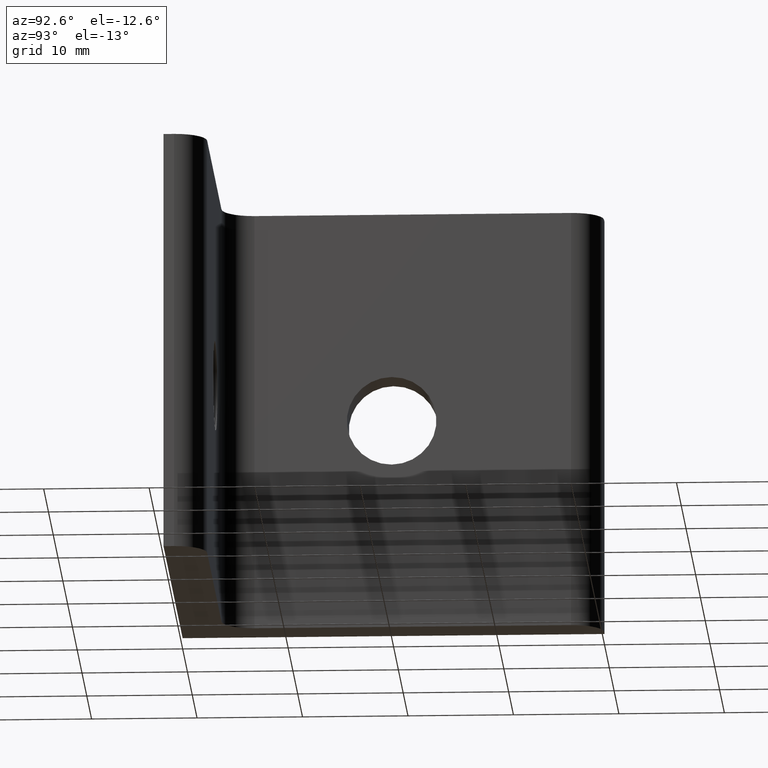
[diagram: clean part render]
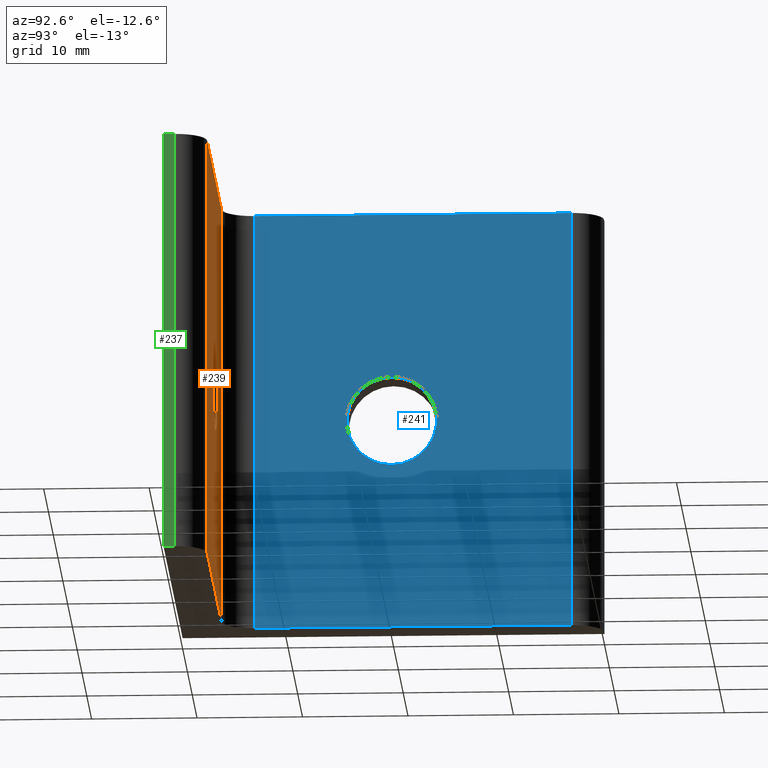
[diagram: same view with three faces highlighted in distinct colors, each labeled with its STEP entity id]
A machine part, auxiliary view with three faces highlighted in distinct colors.
Their STEP definitions:

[orange] entity #239 — the highlighted planar face has unit normal (0, -1, 0).
#25=LINE('',#376,#46);
#26=LINE('',#380,#47);
#27=LINE('',#382,#48);
#28=LINE('',#383,#49);
#46=VECTOR('',#305,40.);
#47=VECTOR('',#310,30.);
#48=VECTOR('',#311,40.);
#49=VECTOR('',#312,30.);
#60=PLANE('',#260);
#69=FACE_BOUND('',#95,.T.);
#77=FACE_OUTER_BOUND('',#94,.T.);
#94=EDGE_LOOP('',(#188,#189,#190,#191));
#95=EDGE_LOOP('',(#192));
#105=CIRCLE('',#252,4.25);
#115=VERTEX_POINT('',#347);
#125=VERTEX_POINT('',#373);
#126=VERTEX_POINT('',#375);
#127=VERTEX_POINT('',#379);
#128=VERTEX_POINT('',#381);
#137=EDGE_CURVE('',#115,#115,#105,.T.);
#150=EDGE_CURVE('',#126,#125,#25,.T.);
#152=EDGE_CURVE('',#125,#127,#26,.T.);
#153=EDGE_CURVE('',#128,#127,#27,.T.);
#154=EDGE_CURVE('',#126,#128,#28,.T.);
#188=ORIENTED_EDGE('',*,*,#152,.T.);
#189=ORIENTED_EDGE('',*,*,#153,.F.);
#190=ORIENTED_EDGE('',*,*,#154,.F.);
#191=ORIENTED_EDGE('',*,*,#150,.T.);
#192=ORIENTED_EDGE('',*,*,#137,.T.);
#239=ADVANCED_FACE('',(#77,#69),#60,.F.);
#252=AXIS2_PLACEMENT_3D('',#348,#281,#282);
#260=AXIS2_PLACEMENT_3D('',#378,#308,#309);
#281=DIRECTION('center_axis',(0.,-1.,0.));
#282=DIRECTION('ref_axis',(0.,0.,-1.));
#305=DIRECTION('',(0.,0.,-1.));
#308=DIRECTION('center_axis',(0.,-1.,0.));
#309=DIRECTION('ref_axis',(0.,0.,-1.));
#310=DIRECTION('',(-1.,0.,0.));
#311=DIRECTION('',(0.,0.,-1.));
#312=DIRECTION('',(-1.,0.,0.));
#347=CARTESIAN_POINT('',(20.,4.,-4.24999999999999));
#348=CARTESIAN_POINT('Origin',(20.,4.,7.105427E-15));
#373=CARTESIAN_POINT('',(37.,4.,-20.));
#375=CARTESIAN_POINT('',(37.,4.,20.));
#376=CARTESIAN_POINT('',(37.,4.,20.));
#378=CARTESIAN_POINT('Origin',(5.50000000000002,4.,22.));
#379=CARTESIAN_POINT('',(7.00000000000002,4.,-20.));
#380=CARTESIAN_POINT('',(37.,4.,-20.));
#381=CARTESIAN_POINT('',(7.00000000000002,4.,20.));
#382=CARTESIAN_POINT('',(7.00000000000002,4.,20.));
#383=CARTESIAN_POINT('',(37.,4.,20.));

[blue] entity #241 — the highlighted planar face has unit normal (-1, 0, 0).
#29=LINE('',#388,#50);
#30=LINE('',#392,#51);
#31=LINE('',#394,#52);
#32=LINE('',#395,#53);
#50=VECTOR('',#317,40.);
#51=VECTOR('',#322,30.);
#52=VECTOR('',#323,40.);
#53=VECTOR('',#324,30.);
#61=PLANE('',#264);
#70=FACE_BOUND('',#98,.T.);
#79=FACE_OUTER_BOUND('',#97,.T.);
#97=EDGE_LOOP('',(#197,#198,#199,#200));
#98=EDGE_LOOP('',(#201));
#103=CIRCLE('',#249,4.25);
#113=VERTEX_POINT('',#342);
#129=VERTEX_POINT('',#385);
#130=VERTEX_POINT('',#387);
#131=VERTEX_POINT('',#391);
#132=VERTEX_POINT('',#393);
#135=EDGE_CURVE('',#113,#113,#103,.T.);
#156=EDGE_CURVE('',#130,#129,#29,.T.);
#158=EDGE_CURVE('',#129,#131,#30,.T.);
#159=EDGE_CURVE('',#132,#131,#31,.T.);
#160=EDGE_CURVE('',#130,#132,#32,.T.);
#197=ORIENTED_EDGE('',*,*,#158,.T.);
#198=ORIENTED_EDGE('',*,*,#159,.F.);
#199=ORIENTED_EDGE('',*,*,#160,.F.);
#200=ORIENTED_EDGE('',*,*,#156,.T.);
#201=ORIENTED_EDGE('',*,*,#135,.T.);
#241=ADVANCED_FACE('',(#79,#70),#61,.F.);
#249=AXIS2_PLACEMENT_3D('',#343,#275,#276);
#264=AXIS2_PLACEMENT_3D('',#390,#320,#321);
#275=DIRECTION('center_axis',(-1.,0.,0.));
#276=DIRECTION('ref_axis',(0.,0.,1.));
#317=DIRECTION('',(0.,0.,-1.));
#320=DIRECTION('center_axis',(-1.,0.,0.));
#321=DIRECTION('ref_axis',(0.,0.,1.));
#322=DIRECTION('',(0.,1.,0.));
#323=DIRECTION('',(0.,0.,-1.));
#324=DIRECTION('',(0.,1.,0.));
#342=CARTESIAN_POINT('',(4.00000000000002,20.,4.25000000000001));
#343=CARTESIAN_POINT('Origin',(4.00000000000002,20.,7.105427E-15));
#385=CARTESIAN_POINT('',(4.00000000000002,7.,-20.));
#387=CARTESIAN_POINT('',(4.00000000000002,7.,20.));
#388=CARTESIAN_POINT('',(4.00000000000002,7.,20.));
#390=CARTESIAN_POINT('Origin',(4.00000000000002,5.5,-22.));
#391=CARTESIAN_POINT('',(4.00000000000002,37.,-20.));
#392=CARTESIAN_POINT('',(4.00000000000002,7.,-20.));
#393=CARTESIAN_POINT('',(4.00000000000002,37.,20.));
#394=CARTESIAN_POINT('',(4.00000000000002,37.,20.));
#395=CARTESIAN_POINT('',(4.00000000000002,7.,20.));

[green] entity #237 — the highlighted planar face has unit normal (-1, 0, 0).
#20=LINE('',#364,#41);
#22=LINE('',#368,#43);
#23=LINE('',#370,#44);
#24=LINE('',#371,#45);
#41=VECTOR('',#294,40.);
#43=VECTOR('',#298,1.);
#44=VECTOR('',#299,40.);
#45=VECTOR('',#300,1.);
#59=PLANE('',#256);
#75=FACE_OUTER_BOUND('',#92,.T.);
#92=EDGE_LOOP('',(#180,#181,#182,#183));
#121=VERTEX_POINT('',#361);
#122=VERTEX_POINT('',#363);
#123=VERTEX_POINT('',#367);
#124=VERTEX_POINT('',#369);
#144=EDGE_CURVE('',#122,#121,#20,.T.);
#146=EDGE_CURVE('',#121,#123,#22,.T.);
#147=EDGE_CURVE('',#124,#123,#23,.T.);
#148=EDGE_CURVE('',#122,#124,#24,.T.);
#180=ORIENTED_EDGE('',*,*,#146,.T.);
#181=ORIENTED_EDGE('',*,*,#147,.F.);
#182=ORIENTED_EDGE('',*,*,#148,.F.);
#183=ORIENTED_EDGE('',*,*,#144,.T.);
#237=ADVANCED_FACE('',(#75),#59,.F.);
#256=AXIS2_PLACEMENT_3D('',#366,#296,#297);
#294=DIRECTION('',(0.,0.,-1.));
#296=DIRECTION('center_axis',(-1.,0.,0.));
#297=DIRECTION('ref_axis',(0.,0.,1.));
#298=DIRECTION('',(0.,1.,0.));
#299=DIRECTION('',(0.,0.,-1.));
#300=DIRECTION('',(0.,1.,0.));
#361=CARTESIAN_POINT('',(40.,0.,-20.));
#363=CARTESIAN_POINT('',(40.,0.,20.));
#364=CARTESIAN_POINT('',(40.,0.,20.));
#366=CARTESIAN_POINT('Origin',(40.,-0.050000000000001,-22.));
#367=CARTESIAN_POINT('',(40.,1.,-20.));
#368=CARTESIAN_POINT('',(40.,0.,-20.));
#369=CARTESIAN_POINT('',(40.,1.,20.));
#370=CARTESIAN_POINT('',(40.,1.,20.));
#371=CARTESIAN_POINT('',(40.,0.,20.));